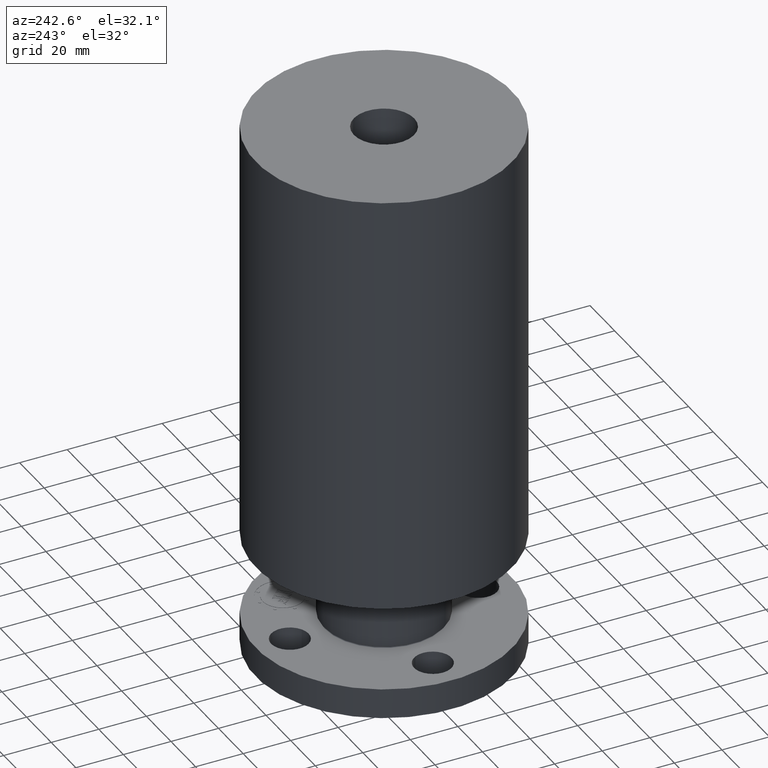
[diagram: clean part render]
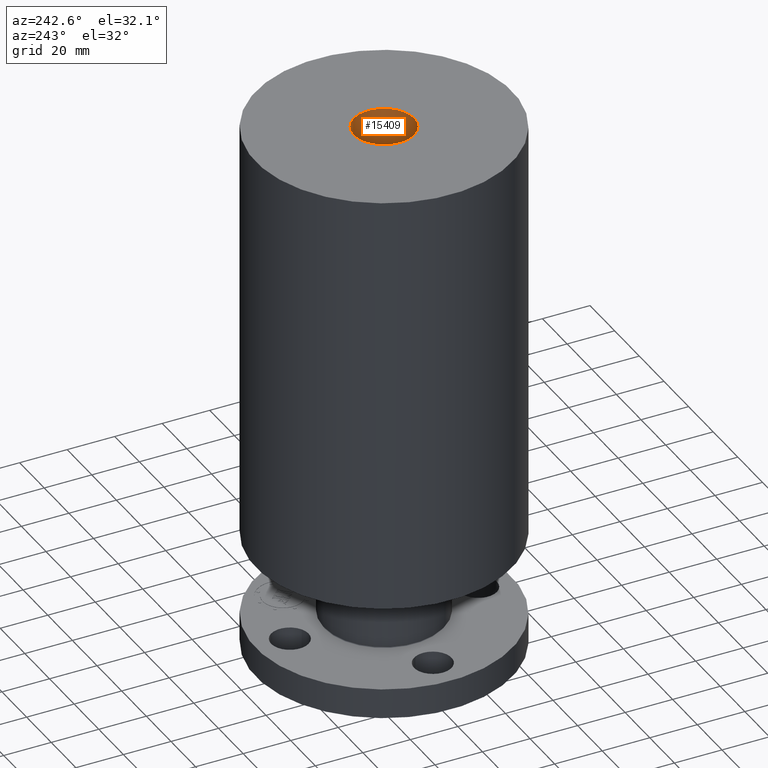
[diagram: same view with one face highlighted and labeled with its STEP entity id]
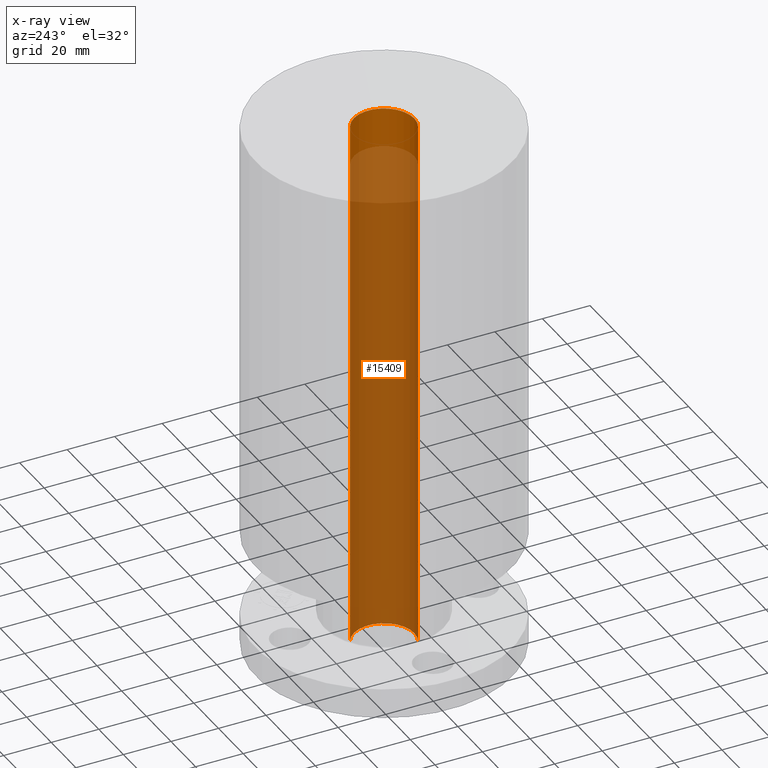
[diagram: x-ray of the same camera — body ghosted, the highlighted face saturated]
A machine part, auxiliary view. The second image highlights one B-rep face of the part: STEP entity #15409.
The next image is the same camera in x-ray: the body ghosted, the highlighted face saturated — about 93% of this face is hidden behind the body in this view.
In plain terms, the highlighted cylindrical surface (edge-blend (fillet) strip) has radius 12.7 mm, axis along (0, 0, -1).
Its self-contained STEP definition (entity closure, byte-faithful):
#14953=AXIS2_PLACEMENT_3D('Circle Axis2P3D',#14951,#14952,$) ;
#15382=AXIS2_PLACEMENT_3D('Cylinder Axis2P3D',#15379,#15380,#15381) ;
#15386=AXIS2_PLACEMENT_3D('Circle Axis2P3D',#15384,#15385,$) ;
#14946=CARTESIAN_POINT('Vertex',(-0.239712769303,-0.438791280947,8.93750000004)) ;
#14948=CARTESIAN_POINT('Vertex',(0.239712769303,0.438791280947,8.93750000004)) ;
#14951=CARTESIAN_POINT('Axis2P3D Location',(0.,0.,8.93750000004)) ;
#15379=CARTESIAN_POINT('Axis2P3D Location',(0.,0.,4.43750000002)) ;
#15384=CARTESIAN_POINT('Axis2P3D Location',(0.,0.,0.)) ;
#15388=CARTESIAN_POINT('Vertex',(-0.239712769303,-0.438791280947,0.)) ;
#15390=CARTESIAN_POINT('Vertex',(0.239712769303,0.438791280947,0.)) ;
#15393=CARTESIAN_POINT('Line Origine',(-0.239712769303,-0.438791280947,4.46875000002)) ;
#15398=CARTESIAN_POINT('Line Origine',(0.239712769303,0.438791280947,4.46875000002)) ;
#14952=DIRECTION('Axis2P3D Direction',(0.,0.,-0.0393700787402)) ;
#15380=DIRECTION('Axis2P3D Direction',(0.,0.,-0.0393700787402)) ;
#15381=DIRECTION('Axis2P3D XDirection',(-0.0188750212049,-0.0345504945626,0.)) ;
#15385=DIRECTION('Axis2P3D Direction',(0.,0.,-0.0393700787402)) ;
#15394=DIRECTION('Vector Direction',(0.,0.,-0.0393700787402)) ;
#15399=DIRECTION('Vector Direction',(0.,0.,-0.0393700787402)) ;
#15395=VECTOR('Line Direction',#15394,0.0393700787402) ;
#15400=VECTOR('Line Direction',#15399,0.0393700787402) ;
#15404=ORIENTED_EDGE('',*,*,#15392,.F.) ;
#15405=ORIENTED_EDGE('',*,*,#15397,.F.) ;
#15406=ORIENTED_EDGE('',*,*,#14955,.F.) ;
#15407=ORIENTED_EDGE('',*,*,#15402,.T.) ;
#15409=ADVANCED_FACE('PartBody',(#15408),#15383,.F.) ;
#14954=CIRCLE('generated circle',#14953,0.500000000002) ;
#15387=CIRCLE('generated circle',#15386,0.500000000002) ;
#15383=CYLINDRICAL_SURFACE('generated cylinder',#15382,0.500000000002) ;
#14955=EDGE_CURVE('',#14949,#14947,#14954,.T.) ;
#15392=EDGE_CURVE('',#15389,#15391,#15387,.F.) ;
#15397=EDGE_CURVE('',#14947,#15389,#15396,.T.) ;
#15402=EDGE_CURVE('',#14949,#15391,#15401,.T.) ;
#15403=EDGE_LOOP('',(#15404,#15405,#15406,#15407)) ;
#15408=FACE_OUTER_BOUND('',#15403,.T.) ;
#15396=LINE('Line',#15393,#15395) ;
#15401=LINE('Line',#15398,#15400) ;
#14947=VERTEX_POINT('',#14946) ;
#14949=VERTEX_POINT('',#14948) ;
#15389=VERTEX_POINT('',#15388) ;
#15391=VERTEX_POINT('',#15390) ;